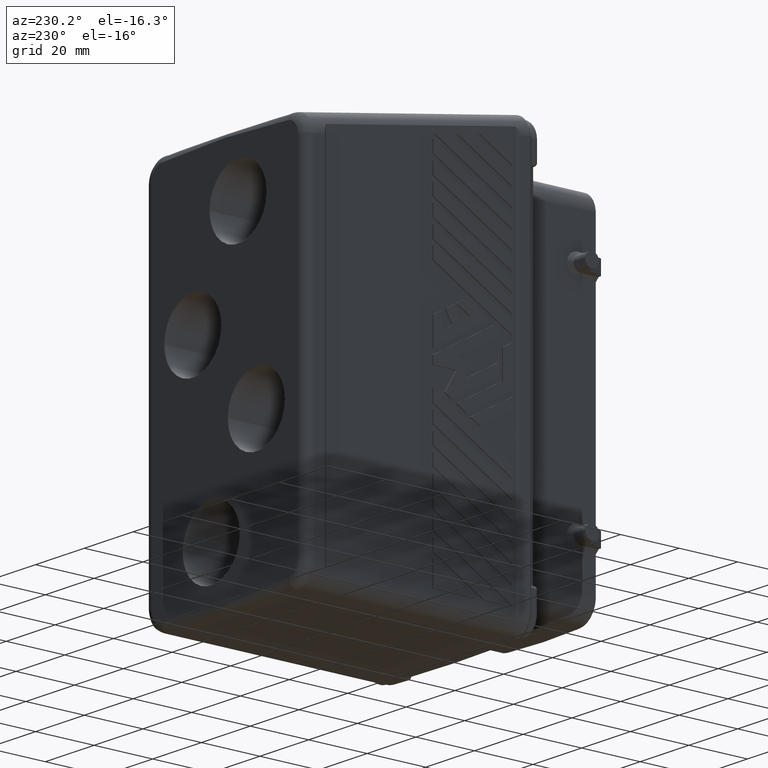
[diagram: clean part render]
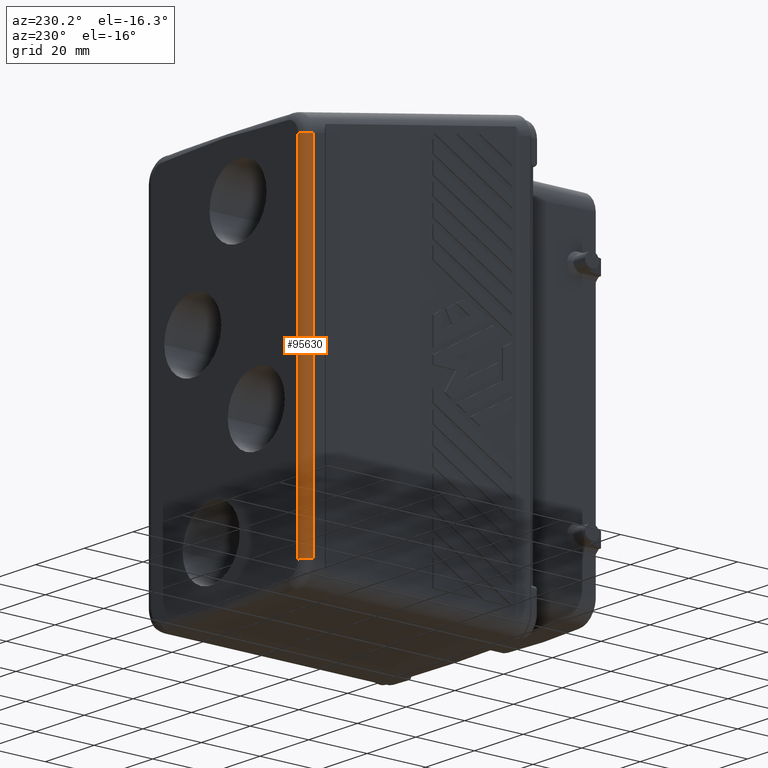
[diagram: same view with one face highlighted and labeled with its STEP entity id]
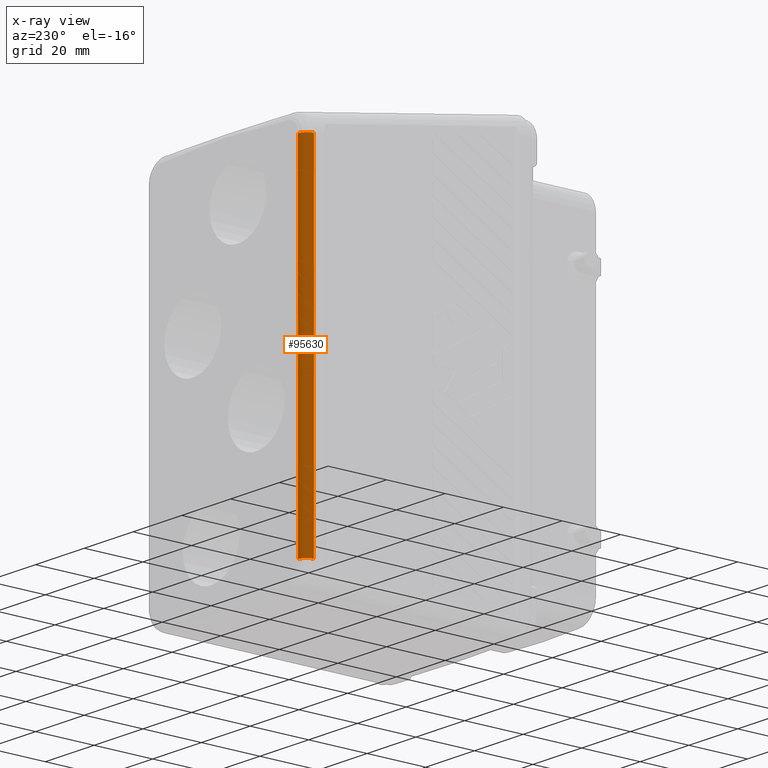
[diagram: x-ray of the same camera — body ghosted, the highlighted face saturated]
A machine part, auxiliary view. The second image highlights one B-rep face of the part: STEP entity #95630.
The next image is the same camera in x-ray: the body ghosted, the highlighted face saturated — about 0% of this face is hidden behind the body in this view.
In plain terms, the highlighted cylindrical surface (edge-blend (fillet) strip) has radius 3 mm, axis along (0, -0, 1).
Its self-contained STEP definition (entity closure, byte-faithful):
#3900=CARTESIAN_POINT('',(13.6173136543522,125.749860699868,
48.1180860330287));
#3910=VERTEX_POINT('',#3900);
#24320=CARTESIAN_POINT('',(16.6173136543518,125.749860699868,
48.1180860330287));
#24330=DIRECTION('',(0.,0.,1.));
#24340=DIRECTION('',(1.,0.,-0.));
#24350=AXIS2_PLACEMENT_3D('',#24320,#24330,#24340);
#24360=CIRCLE('',#24350,2.99999999999946);
#24370=CARTESIAN_POINT('',(16.5911340452668,128.749746469038,
48.1180860330287));
#24380=VERTEX_POINT('',#24370);
#24390=EDGE_CURVE('',#24380,#3910,#24360,.T.);
#31000=CARTESIAN_POINT('',(13.6173136543451,125.749860699868,
-68.4044855420491));
#31010=VERTEX_POINT('',#31000);
#31040=CARTESIAN_POINT('',(13.6173136543522,125.749860699868,
48.1180845743037));
#31050=DIRECTION('',(0.,-1.61294764294015E-15,1.));
#31060=VECTOR('',#31050,1.);
#31070=LINE('',#31040,#31060);
#31080=EDGE_CURVE('',#31010,#3910,#31070,.T.);
#66520=CARTESIAN_POINT('',(16.591134045279,128.749746469038,0.));
#66530=DIRECTION('',(1.91842024313736E-13,6.12323399573678E-17,1.));
#66540=VECTOR('',#66530,1.);
#66550=LINE('',#66520,#66540);
#66560=CARTESIAN_POINT('',(16.5911340452668,128.749746469038,
-68.4044855420491));
#66570=VERTEX_POINT('',#66560);
#66580=EDGE_CURVE('',#66570,#24380,#66550,.T.);
#84580=CARTESIAN_POINT('',(16.6173136543508,125.749860699859,
-68.4044855420491));
#84590=DIRECTION('',(0.,0.,1.));
#84600=DIRECTION('',(1.,0.,-0.));
#84610=AXIS2_PLACEMENT_3D('',#84580,#84590,#84600);
#84620=CIRCLE('',#84610,3.00000000000839);
#84630=EDGE_CURVE('',#66570,#31010,#84620,.T.);
#95520=CARTESIAN_POINT('',(16.6173136543522,125.749860699868,
48.1180845743037));
#95530=DIRECTION('',(0.,-1.61294764294015E-15,1.));
#95540=DIRECTION('',(0.,1.,1.61294764294015E-15));
#95550=AXIS2_PLACEMENT_3D('',#95520,#95530,#95540);
#95560=CYLINDRICAL_SURFACE('',#95550,3.);
#95570=ORIENTED_EDGE('',*,*,#24390,.F.);
#95580=ORIENTED_EDGE('',*,*,#31080,.T.);
#95590=ORIENTED_EDGE('',*,*,#84630,.T.);
#95600=ORIENTED_EDGE('',*,*,#66580,.F.);
#95610=EDGE_LOOP('',(#95600,#95590,#95580,#95570));
#95620=FACE_OUTER_BOUND('',#95610,.T.);
#95630=ADVANCED_FACE('',(#95620),#95560,.T.);